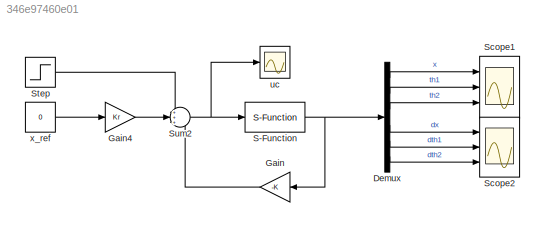
MODEL slx_346e97460e01
KIND model
CONFIG AbsTol = auto
CONFIG FixedStep = auto
CONFIG MaxStep = 1e-4
CONFIG MinStep = auto
CONFIG RelTol = 1e-3
CONFIG SampleTimeConstraint = Unconstrained
CONFIG Solver = ode23t
CONFIG SolverMode = SingleTasking
CONFIG SolverName = ode23t
CONFIG StartTime = 0.0
CONFIG StopTime = 20
BLOCK [Demux] Demux
  Outputs = 6
  Ports = [1, 6]
BLOCK [Gain] Gain
  Gain = -K
  Multiplication = Matrix(K*u)
BLOCK [Gain] Gain4
  Gain = Kr
BLOCK [S-Function] S-Function
  EnableBusSupport = off
  FunctionName = plant
  Parameters = CoeF1, CoeF2, CoeF3, theta1_rad, theta2_rad
  Ports = [1, 1]
  SFunctionDeploymentMode = off
BLOCK [Scope] Scope1
  Floating = off
  NumInputPorts = 3
  Ports = [3]
  ScopeSpecificationString = Simulink.scopes.TimeScopeBlockCfg('CurrentConfiguration', extmgr.ConfigurationSet(extmgr.Configuration('Core','General UI',true,'FigureColor',[1 1 1]),extmgr.Configuration('Core','Source UI',true),extmgr.Configuration('Sources','WiredSimulink',true,'DataLoggingVariableName','ScopeData1'),extmgr.Configuration('Visuals','Time Domain',true,'SerializedDisplays',{struct('MinYLimReal','-0.11659','MaxYLi...<+1916ch>
BLOCK [Scope] Scope2
  Floating = off
  NumInputPorts = 3
  Ports = [3]
  ScopeSpecificationString = Simulink.scopes.TimeScopeBlockCfg('CurrentConfiguration', extmgr.ConfigurationSet(extmgr.Configuration('Core','General UI',true,'FigureColor',[1 1 1]),extmgr.Configuration('Core','Source UI',true),extmgr.Configuration('Sources','WiredSimulink',true),extmgr.Configuration('Visuals','Time Domain',true,'SerializedDisplays',{struct('MinYLimReal','-15.59404','MaxYLimReal','10.70469','YLabelReal','','Min...<+1887ch>
BLOCK [Step] Step
  After = 0.5
  SampleTime = 0
  Time = 10
BLOCK [Sum] Sum2
  Inputs = +++
  Ports = [3, 1]
BLOCK [Scope] uc
  Floating = off
  NumInputPorts = 1
  Ports = [1]
  ScopeSpecificationString = Simulink.scopes.TimeScopeBlockCfg('CurrentConfiguration', extmgr.ConfigurationSet(extmgr.Configuration('Core','General UI',true,'FigureColor',[1 1 1]),extmgr.Configuration('Core','Source UI',true),extmgr.Configuration('Sources','WiredSimulink',true,'DataLoggingVariableName','ScopeData6'),extmgr.Configuration('Visuals','Time Domain',true,'SerializedDisplays',{struct('MinYLimReal','-7.77385','MaxYLi...<+2292ch>
BLOCK [Constant] x_ref
  Value = 0
LINE Demux:1 -> Scope1:1
LINE Demux:2 -> Scope1:2
LINE Demux:3 -> Scope1:3
LINE Demux:4 -> Scope2:1
LINE Demux:5 -> Scope2:2
LINE Demux:6 -> Scope2:3
LINE Gain4:1 -> Sum2:2
LINE Gain:1 -> Sum2:3
NET S-Function:1 -> Demux:1, Gain:1
LINE Step:1 -> Sum2:1
NET Sum2:1 -> S-Function:1, uc:1
LINE x_ref:1 -> Gain4:1
note: NET lines group one-source signal fan-out (src -> all destinations, sorted); 1:1 wires keep LINE
